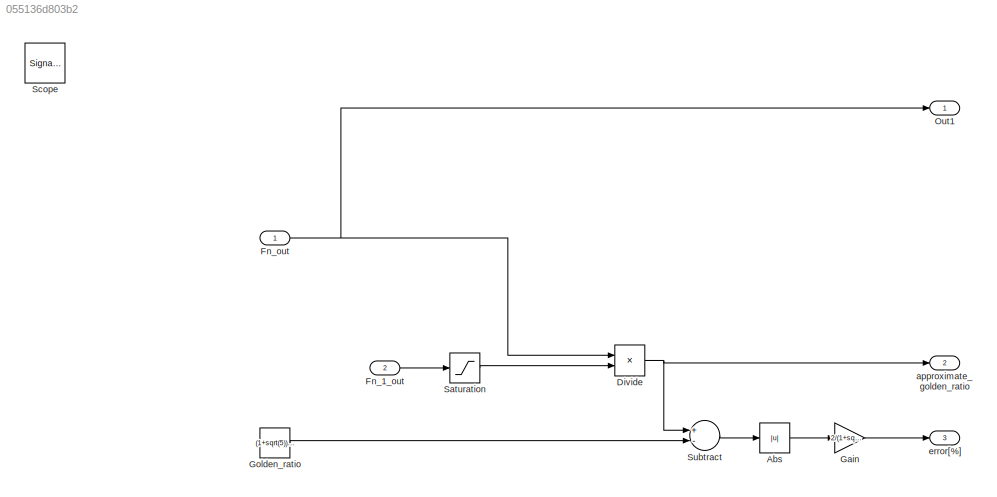
MODEL slx_055136d803b2
KIND model
BLOCK [Abs] Abs
  SaturateOnIntegerOverflow = off
BLOCK [Product] Divide
  InputSameDT = off
  Inputs = */
  OutDataTypeStr = Inherit: Inherit via internal rule
  Ports = [2, 1]
  RndMeth = Floor
  SaturateOnIntegerOverflow = off
BLOCK [Inport] Fn_1_out
  IconDisplay = Port number
  Port = 2
BLOCK [Inport] Fn_out
  IconDisplay = Port number
BLOCK [Gain] Gain
  Gain = 2/(1+sqrt(5))
  OutDataTypeStr = Inherit: Inherit via internal rule
  ParamDataTypeStr = Inherit: Inherit via internal rule
  SaturateOnIntegerOverflow = off
BLOCK [Constant] Golden_ratio
  Value = (1+sqrt(5))/2
BLOCK [Outport] Out1
  IconDisplay = Port number
BLOCK [Saturate] Saturation
  InputPortMap = u0
  LowerLimit = 1
  Ports = [1, 1]
  UpperLimit = inf
BLOCK [SignalViewerScope] Scope
  IOType = viewer
  MaxDataPoints = 7500
  NumInputPorts = 2
  Ports = []
  RefreshTime = 0.035000
  ShowDataMarkers = off
  ShowLegends = off
  YMax = 5~5
  YMin = -5~-5
  ZoomMode = yonly
BLOCK [Sum] Subtract
  InputSameDT = off
  Inputs = +-
  OutDataTypeStr = Inherit: Inherit via internal rule
  Ports = [2, 1]
  SaturateOnIntegerOverflow = off
BLOCK [Outport] approximate_golden_ratio
  IconDisplay = Port number
  Port = 2
BLOCK [Outport] error[%]
  IconDisplay = Port number
  Port = 3
LINE Abs:1 -> Gain:1
NET Divide:1 -> Subtract:1, approximate_golden_ratio:1
LINE Fn_1_out:1 -> Saturation:1
NET Fn_out:1 -> Divide:1, Out1:1
LINE Gain:1 -> error[%]:1
LINE Golden_ratio:1 -> Subtract:2
LINE Saturation:1 -> Divide:2
LINE Subtract:1 -> Abs:1
note: NET lines group one-source signal fan-out (src -> all destinations, sorted); 1:1 wires keep LINE
